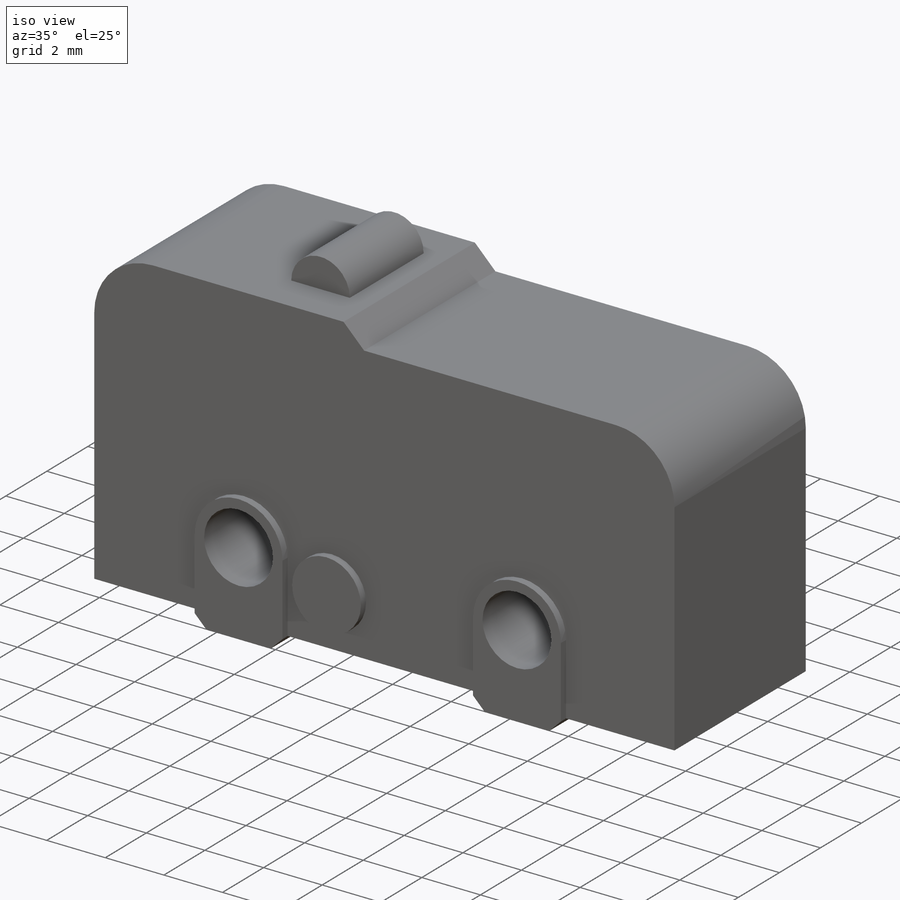
[diagram: iso view]
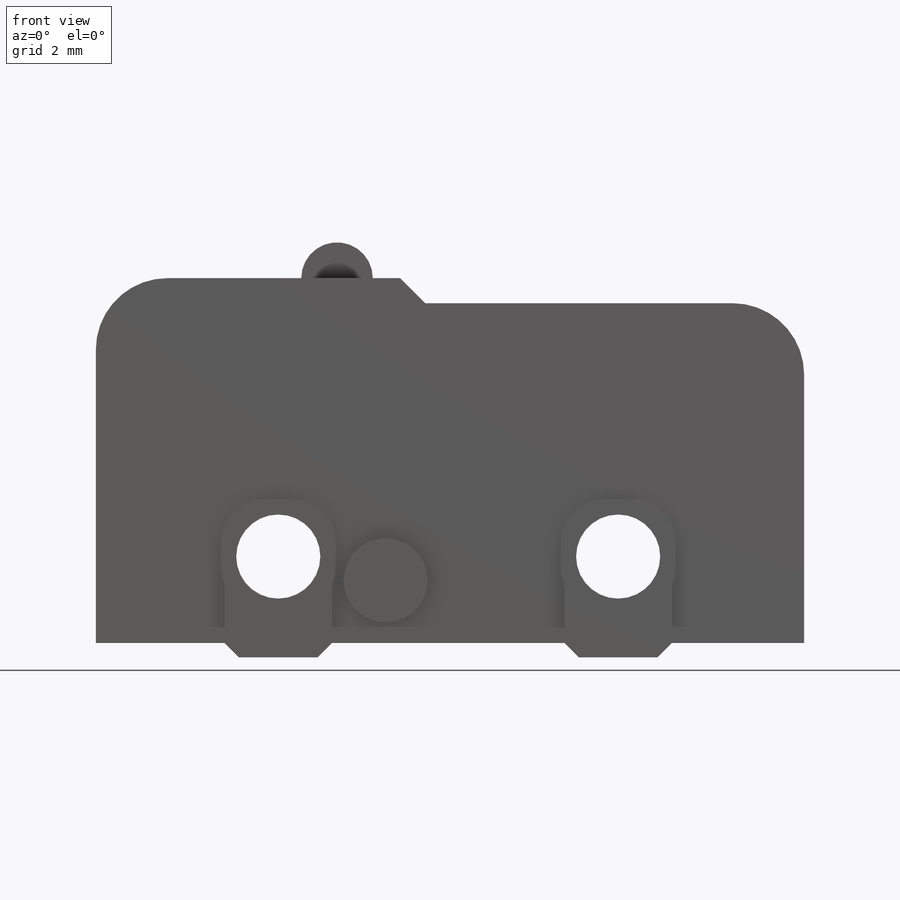
[diagram: front view]
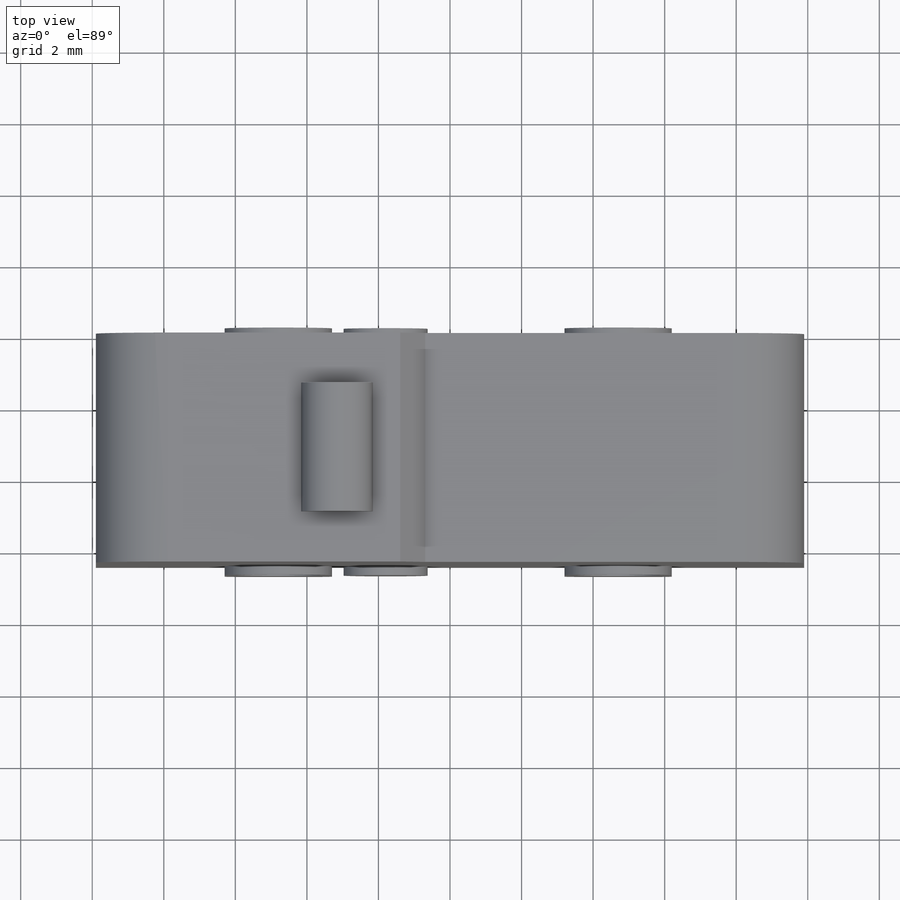
[diagram: top view]
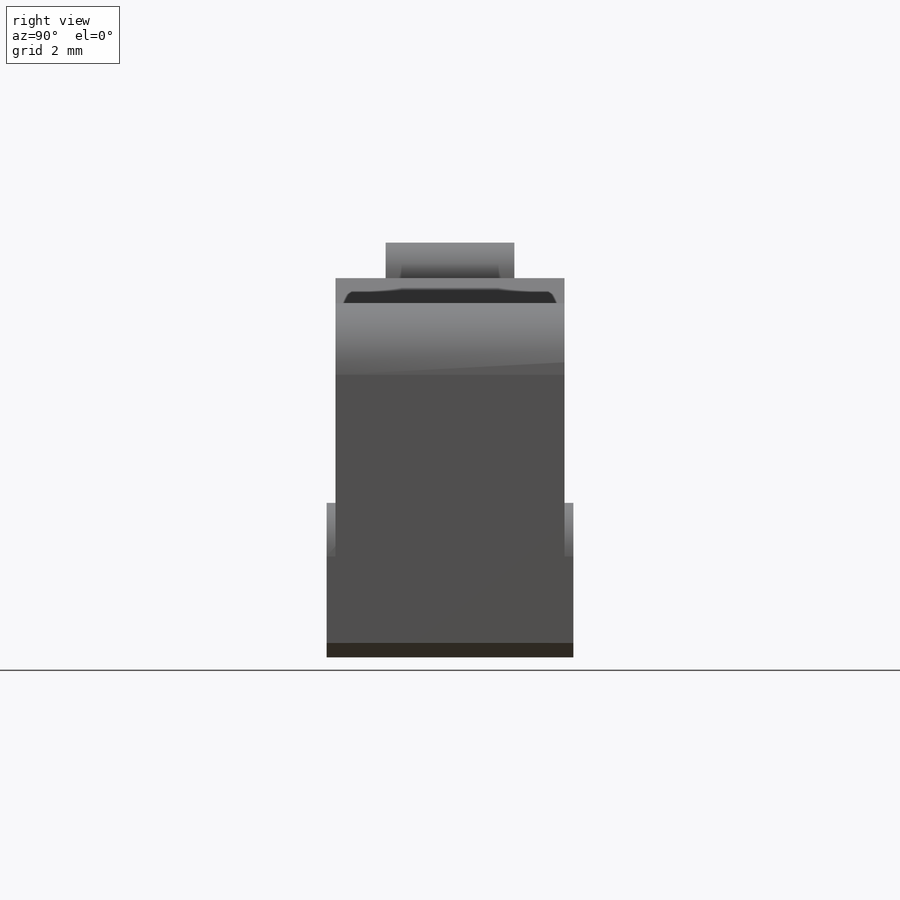
[diagram: right view]
SOLIDWORKS PART (.sldprt)
format: sldprt  version: not decoded by parser v0  size: 278,528 bytes
history: native  units: mm
features: sketch x6, extrude x4, material x1, cut_extrude x1, plane x1 (+12 scaffold rows collapsed)
feature tree (25):
  scaffold x12  (default folders/planes/origin — collapsed)
  material  "Material <not specified>"
  sketch  "Sketch1"  dims[c1.D4=2.35mm c1.D5=2.35mm c1.D6=~1.862683mm c1.D10=3.0mm c1.D11=3.0mm c2.D6=2.35mm c2.D19=2.0mm c2.D22=2.0mm c2.D23=2.0mm c2.D1=~51.053229mm c2.D2=~125.250588mm c3.D1=19.8mm c3.D2=10.2mm c3.D3=9.9mm c3.D6=2.5mm c3.D7=2.5mm c3.D8=5.1mm c3.D9=9.5mm c3.D12=~0.79021mm c4.D6=19.8mm c4.D7=1.5mm c4.D12=1.75mm c4.D13=0.4mm c4.D14=0.4mm c4.D15=~0.258314mm c5.D15=45.0deg c5.D16=~0.528139mm c6.D16=45.0deg c6.D17=~0.510911mm c7.D17=45.0deg c7.D18=~0.559438mm c8.D18=45.0deg c8.D20=9.5mm c8.D21=~1.165883mm c9.D21=45.0deg]
  sketch  "Sketch2"  dims[D1=~1.341177mm]
  extrude  "Boss-Extrude1"  Depth=6.4mm
  sketch  "Sketch4"
  extrude  "Boss-Extrude2"  Depth=0.25mm
  sketch  "Sketch5"
  extrude  "Boss-Extrude3"  Depth=0.25mm
  sketch  "Sketch6"
  cut_extrude  "Cut-Extrude1"  [1 undecoded]
  plane  "Plane1"  Offset=3.2mm
  sketch  "Sketch7"  dims[D1=8.45mm]
  extrude  "Boss-Extrude4"  Depth=1.8mm
decode coverage: 7 of 11 modeling features carry decoded parameters
note: ~ marks probable driven/reference dimensions
note: 1 parameter value undecoded
note: suppression state not decoded; provenance and decode notes live in map.json
